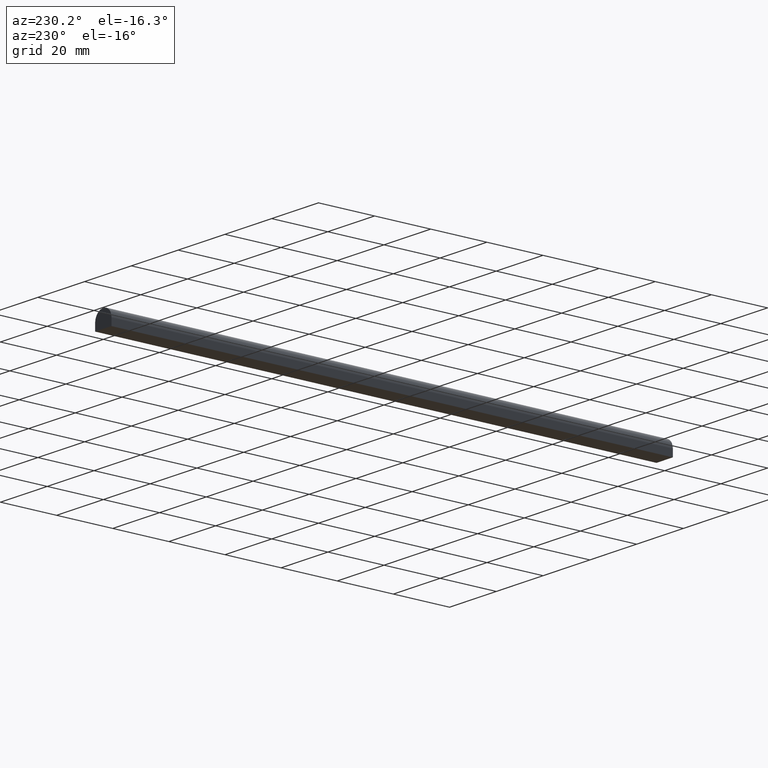
[diagram: clean part render]
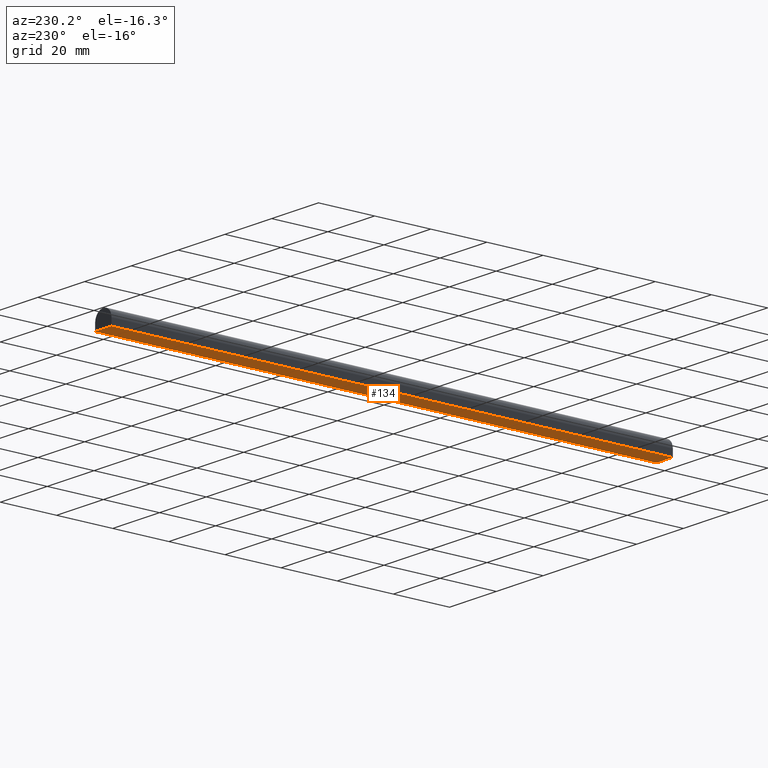
[diagram: same view with one face highlighted and labeled with its STEP entity id]
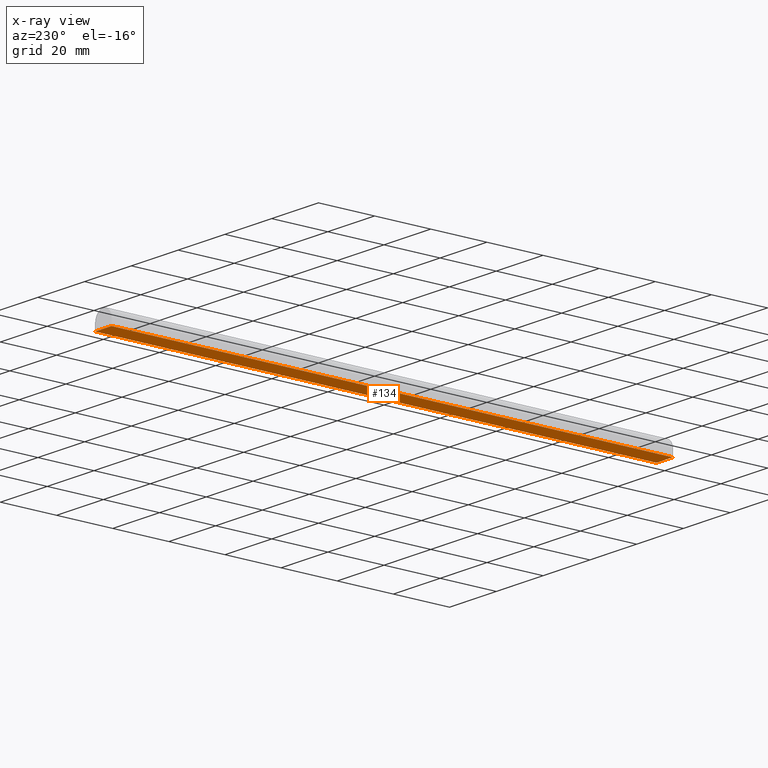
[diagram: x-ray of the same camera — body ghosted, the highlighted face saturated]
A machine part, auxiliary view. The second image highlights one B-rep face of the part: STEP entity #134.
The next image is the same camera in x-ray: the body ghosted, the highlighted face saturated — about 0% of this face is hidden behind the body in this view.
In plain terms, the highlighted planar face has unit normal (0, 0, -1).
Its self-contained STEP definition (entity closure, byte-faithful):
#4 = CARTESIAN_POINT ( 'NONE',  ( -3.500000000000000000, 1000.000000000000000, -3.000000000000000000 ) ) ;
#5 = CARTESIAN_POINT ( 'NONE',  ( 3.500000000000000000, 1000.000000000000000, -3.000000000000000000 ) ) ;
#6 = CARTESIAN_POINT ( 'NONE',  ( 0.0000000000000000000, 200.0000000000000000, -3.000000000000000000 ) ) ;
#10 = VERTEX_POINT ( 'NONE', #132 ) ;
#14 = ORIENTED_EDGE ( 'NONE', *, *, #222, .F. ) ;
#21 = DIRECTION ( 'NONE',  ( 0.0000000000000000000, 0.0000000000000000000, -1.000000000000000000 ) ) ;
#22 = DIRECTION ( 'NONE',  ( 0.0000000000000000000, -1.000000000000000000, 0.0000000000000000000 ) ) ;
#25 = VERTEX_POINT ( 'NONE', #240 ) ;
#31 = VECTOR ( 'NONE', #46, 1000.000000000000000 ) ;
#37 = VERTEX_POINT ( 'NONE', #40 ) ;
#40 = CARTESIAN_POINT ( 'NONE',  ( -3.500000000000000000, 0.0000000000000000000, -3.000000000000000000 ) ) ;
#46 = DIRECTION ( 'NONE',  ( 1.000000000000000000, -0.0000000000000000000, -0.0000000000000000000 ) ) ;
#51 = VECTOR ( 'NONE', #22, 1000.000000000000000 ) ;
#55 = PLANE ( 'NONE',  #205 ) ;
#65 = CARTESIAN_POINT ( 'NONE',  ( 0.0000000000000000000, 0.0000000000000000000, -3.000000000000000000 ) ) ;
#78 = ORIENTED_EDGE ( 'NONE', *, *, #196, .T. ) ;
#82 = VECTOR ( 'NONE', #170, 1000.000000000000000 ) ;
#88 = LINE ( 'NONE', #5, #82 ) ;
#93 = CARTESIAN_POINT ( 'NONE',  ( 3.500000000000000000, 0.0000000000000000000, -3.000000000000000000 ) ) ;
#102 = ORIENTED_EDGE ( 'NONE', *, *, #150, .F. ) ;
#107 = DIRECTION ( 'NONE',  ( -1.000000000000000000, 0.0000000000000000000, 0.0000000000000000000 ) ) ;
#114 = VECTOR ( 'NONE', #192, 1000.000000000000000 ) ;
#120 = EDGE_CURVE ( 'NONE', #25, #206, #88, .T. ) ;
#130 = EDGE_LOOP ( 'NONE', ( #14, #102, #78, #167 ) ) ;
#132 = CARTESIAN_POINT ( 'NONE',  ( -3.500000000000000000, 200.0000000000000000, -3.000000000000000000 ) ) ;
#134 = ADVANCED_FACE ( 'NONE', ( #181 ), #55, .T. ) ;
#149 = LINE ( 'NONE', #65, #31 ) ;
#150 = EDGE_CURVE ( 'NONE', #10, #37, #190, .T. ) ;
#167 = ORIENTED_EDGE ( 'NONE', *, *, #120, .T. ) ;
#170 = DIRECTION ( 'NONE',  ( 0.0000000000000000000, -1.000000000000000000, 0.0000000000000000000 ) ) ;
#176 = CARTESIAN_POINT ( 'NONE',  ( -3.500000000000000000, 1000.000000000000000, -3.000000000000000000 ) ) ;
#181 = FACE_OUTER_BOUND ( 'NONE', #130, .T. ) ;
#190 = LINE ( 'NONE', #176, #51 ) ;
#192 = DIRECTION ( 'NONE',  ( 1.000000000000000000, -0.0000000000000000000, -0.0000000000000000000 ) ) ;
#196 = EDGE_CURVE ( 'NONE', #10, #25, #221, .T. ) ;
#205 = AXIS2_PLACEMENT_3D ( 'NONE', #4, #21, #107 ) ;
#206 = VERTEX_POINT ( 'NONE', #93 ) ;
#221 = LINE ( 'NONE', #6, #114 ) ;
#222 = EDGE_CURVE ( 'NONE', #37, #206, #149, .T. ) ;
#240 = CARTESIAN_POINT ( 'NONE',  ( 3.500000000000000000, 200.0000000000000000, -3.000000000000000000 ) ) ;